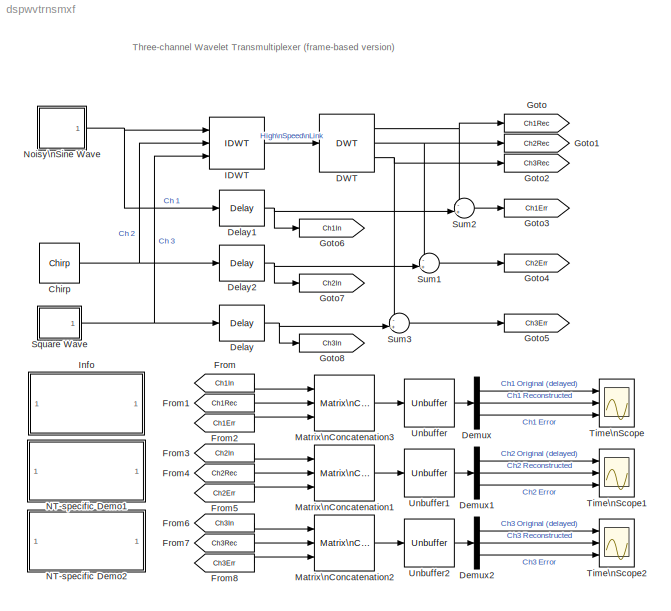
MODEL dspwvtrnsmxf
KIND model
CONFIG AbsTol = auto
CONFIG FixedStep = auto
CONFIG MaxStep = auto
CONFIG MinStep = auto
CONFIG PreLoadFcn = load dspwlets;
CONFIG RelTol = 1e-3
CONFIG Solver = FixedStepDiscrete
CONFIG SolverMode = Auto
CONFIG StartTime = 0.0
CONFIG StopTime = 1000
BLOCK [Reference] Chirp  REF=dspsrcs4/Chirp
  Ports = [0, 1]
  SourceBlock = dspsrcs4/Chirp
  SourceType = Chirp
  Ts = ts
  Tsweep = 1000
  datatype = Double
  f0 = 1/5000
  f1 = 1/50
  mode = Bidirectional
  phase = 0
  spf = fs
  sweep = Swept cosine
  t1 = 1000
BLOCK [Reference] DWT  REF=dspxfrm3/DWT
  HPF = hid
  LPF = lod
  NumLevels = 2
  OrdRec_ordDec = [1 / 1]
  Order = 2
  Output = Multiple ports
  Ports = [1, 3]
  SourceBlock = dspxfrm3/DWT
  SourceType = DWT
  Wname = User-defined
  tree = Asymmetric
BLOCK [Reference] Delay  REF=dspsigops/Delay
  Ports = [1, 1]
  SourceBlock = dspsigops/Delay
  SourceType = Delay
  delay = 6
  dif_ic_for_ch = off
  dif_ic_for_dly = off
  dly_unit = Samples
  ic = 0
  ic_detail = on
  reset_popup = None
BLOCK [Reference] Delay1  REF=dspsigops/Delay
  Ports = [1, 1]
  SourceBlock = dspsigops/Delay
  SourceType = Delay
  delay = 4
  dif_ic_for_ch = off
  dif_ic_for_dly = off
  dly_unit = Samples
  ic = 0
  ic_detail = on
  reset_popup = None
BLOCK [Reference] Delay2  REF=dspsigops/Delay
  Ports = [1, 1]
  SourceBlock = dspsigops/Delay
  SourceType = Delay
  delay = 6
  dif_ic_for_ch = off
  dif_ic_for_dly = off
  dly_unit = Samples
  ic = 0
  ic_detail = on
  reset_popup = None
BLOCK [Demux] Demux
  Outputs = 3
  Ports = [1, 3]
BLOCK [Demux] Demux1
  Outputs = 3
  Ports = [1, 3]
BLOCK [Demux] Demux2
  Outputs = 3
  Ports = [1, 3]
BLOCK [From] From
  GotoTag = Ch1In
BLOCK [From] From1
  GotoTag = Ch1Rec
BLOCK [From] From2
  GotoTag = Ch1Err
BLOCK [From] From3
  GotoTag = Ch2In
BLOCK [From] From4
  GotoTag = Ch2Rec
BLOCK [From] From5
  GotoTag = Ch2Err
BLOCK [From] From6
  GotoTag = Ch3In
BLOCK [From] From7
  GotoTag = Ch3Rec
BLOCK [From] From8
  GotoTag = Ch3Err
BLOCK [Goto] Goto
  GotoTag = Ch1Rec
  TagVisibility = local
BLOCK [Goto] Goto1
  GotoTag = Ch2Rec
  TagVisibility = local
BLOCK [Goto] Goto2
  GotoTag = Ch3Rec
  TagVisibility = local
BLOCK [Goto] Goto3
  GotoTag = Ch1Err
  TagVisibility = local
BLOCK [Goto] Goto4
  GotoTag = Ch2Err
  TagVisibility = local
BLOCK [Goto] Goto5
  GotoTag = Ch3Err
  TagVisibility = local
BLOCK [Goto] Goto6
  GotoTag = Ch1In
  TagVisibility = local
BLOCK [Goto] Goto7
  GotoTag = Ch2In
  TagVisibility = local
BLOCK [Goto] Goto8
  GotoTag = Ch3In
  TagVisibility = local
BLOCK [Reference] IDWT  REF=dspxfrm3/IDWT
  HPF = [0 hir]
  Input = Multiple ports
  LPF = [0 lor]
  NumLevels = 2
  OrdRec_ordDec = [1 / 1]
  Order = 2
  Ports = [3, 1]
  SourceBlock = dspxfrm3/IDWT
  SourceType = IDWT
  Wname = User-defined
  tree = Asymmetric
BLOCK [SubSystem] Info
  MaskDisplay = disp('Info')
  MaskIconFrame = on
  MaskIconOpaque = on
  MaskIconRotate = none
  MaskIconUnits = autoscale
  MaskType = Frame-Based Simulation Info
  Ports = []
  TreatAsAtomicUnit = off
BLOCK [Reference] Matrix\nConcatenation1  REF=simulink/Math\nOperations/Matrix\nConcatenation
  Ports = [3, 1]
  SourceBlock = simulink/Math\nOperations/Matrix\nConcatenation
  SourceType = Matrix Concatenation
  catMethod = Horizontal
  numInports = 3
BLOCK [Reference] Matrix\nConcatenation2  REF=simulink/Math\nOperations/Matrix\nConcatenation
  Ports = [3, 1]
  SourceBlock = simulink/Math\nOperations/Matrix\nConcatenation
  SourceType = Matrix Concatenation
  catMethod = Horizontal
  numInports = 3
BLOCK [Reference] Matrix\nConcatenation3  REF=simulink/Math\nOperations/Matrix\nConcatenation
  Ports = [3, 1]
  SourceBlock = simulink/Math\nOperations/Matrix\nConcatenation
  SourceType = Matrix Concatenation
  catMethod = Horizontal
  numInports = 3
BLOCK [SubSystem] NT-specific Demo1
  MaskDisplay = disp('Sample-Based\\nDemo')
  MaskIconFrame = on
  MaskIconOpaque = on
  MaskIconRotate = none
  MaskIconUnits = autoscale
  MaskType = Sample-Based Demo
  OpenFcn = dspwvtrnsmx
  Ports = []
  TreatAsAtomicUnit = off
BLOCK [SubSystem] NT-specific Demo2
  MaskDisplay = disp('Fixed-Point\\nDemo')
  MaskIconFrame = on
  MaskIconOpaque = on
  MaskIconRotate = none
  MaskIconUnits = autoscale
  MaskType = Fixed-Point Demo
  OpenFcn = dspwvtrnsmxfp
  Ports = []
  TreatAsAtomicUnit = off
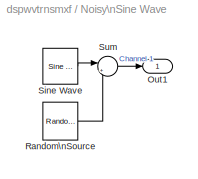
BLOCK [SubSystem] Noisy\nSine Wave
  Ports = [0, 1]
  ShowPortLabels = off
  TreatAsAtomicUnit = off
BLOCK [Outport] Noisy\nSine Wave/Out1
BLOCK [Reference] Noisy\nSine Wave/Random\nSource  REF=dspsrcs4/Random\nSource
  Diagnostics = AllowInheritedTsInSrc
  Inherit = off
  Max = 1
  Mean = 0
  Min = 0
  OutComplex = Real
  Ports = [0, 1]
  RepMode = Specify seed
  SampFrame = fs*2
  SampMode = Discrete
  SampTime = ts/2
  Seed = 1
  SourceBlock = dspsrcs4/Random\nSource
  SourceType = Random Source
  SrcType = Gaussian
  Var = 0.2
BLOCK [Reference] Noisy\nSine Wave/Sine Wave  REF=dspsrcs4/Sine Wave
  Amplitude = 1
  CompMethod = Trigonometric fcn
  Frequency = 1/68
  OutComplex = Real
  Phase = 0
  Ports = [0, 1]
  ResetState = Restart at time zero
  SampleMode = Discrete
  SampleTime = ts/2
  SamplesPerFrame = fs*2
  SourceBlock = dspsrcs4/Sine Wave
  SourceType = Sine Wave
  TableSize = Speed
  dType = Double
BLOCK [Sum] Noisy\nSine Wave/Sum
  IconShape = round
  Inputs = |++
  Ports = [2, 1]
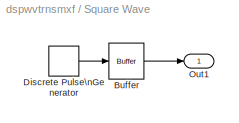
BLOCK [SubSystem] Square Wave
  Ports = [0, 1]
  ShowPortLabels = off
  TreatAsAtomicUnit = off
BLOCK [Reference] Square Wave/Buffer  REF=dspbuff3/Buffer
  N = fs
  Ports = [1, 1]
  SourceBlock = dspbuff3/Buffer
  SourceType = Buffer
  V = 0
  ic = 0
BLOCK [DiscretePulseGenerator] Square Wave/Discrete Pulse\nGenerator
  Period = 125
  Ports = [0, 1]
  PulseWidth = 50
  SampleTime = ts
BLOCK [Outport] Square Wave/Out1
BLOCK [Sum] Sum1
  IconShape = round
  Inputs = -+|
  Ports = [2, 1]
BLOCK [Sum] Sum2
  IconShape = round
  Inputs = -+|
  Ports = [2, 1]
BLOCK [Sum] Sum3
  IconShape = round
  Inputs = -+|
  Ports = [2, 1]
BLOCK [Scope] Time\nScope
  DataFormat = Structure
  NumInputPorts = 3
  Ports = [3]
  TimeRange = 1000
  YMax = 2~2~5e-011
  YMin = -2~-2~-5e-011
BLOCK [Scope] Time\nScope1
  DataFormat = Structure
  NumInputPorts = 3
  Ports = [3]
  SaveName = ScopeData1
  TimeRange = 1000
  YMax = 1~1~5e-011
  YMin = -1~-1~-5e-011
BLOCK [Scope] Time\nScope2
  DataFormat = Structure
  NumInputPorts = 3
  Ports = [3]
  SaveName = ScopeData2
  TimeRange = 1000
  YMax = 1.2~1.2~5e-011
  YMin = 0~0~-5e-011
BLOCK [Reference] Unbuffer  REF=dspbuff3/Unbuffer
  Ports = [1, 1]
  SourceBlock = dspbuff3/Unbuffer
  SourceType = Unbuffer
  ic = 0
BLOCK [Reference] Unbuffer1  REF=dspbuff3/Unbuffer
  Ports = [1, 1]
  SourceBlock = dspbuff3/Unbuffer
  SourceType = Unbuffer
  ic = 0
BLOCK [Reference] Unbuffer2  REF=dspbuff3/Unbuffer
  Ports = [1, 1]
  SourceBlock = dspbuff3/Unbuffer
  SourceType = Unbuffer
  ic = 0
ANNOTATION (root): Three-channel Wavelet Transmultiplexer (frame-based version)
ANNOTATION Info: Demonstration of a Wavelet Transmultiplexer (WTM)\n\nThe wavelet transmultiplexer (WTM) provides\nan interesting example of the perfect\nreconstruction property of the DWT.\n\nThis WTM combines three source signals for transmission\nover a single link, then separates the three signals at the\nreceiving end of the channel. The waveforms plotted in\neach of the scope windows demonstrate the ability ...<+2795ch>
NET Chirp:1 -> Delay2:1, IDWT:2
NET DWT:1 -> Goto:1, Sum2:1
NET DWT:2 -> Goto1:1, Sum1:1
NET DWT:3 -> Goto2:1, Sum3:1
NET Delay1:1 -> Goto6:1, Sum2:2
NET Delay2:1 -> Goto7:1, Sum1:2
NET Delay:1 -> Goto8:1, Sum3:2
LINE Demux1:1 -> Time\nScope1:1
LINE Demux1:2 -> Time\nScope1:2
LINE Demux1:3 -> Time\nScope1:3
LINE Demux2:1 -> Time\nScope2:1
LINE Demux2:2 -> Time\nScope2:2
LINE Demux2:3 -> Time\nScope2:3
LINE Demux:1 -> Time\nScope:1
LINE Demux:2 -> Time\nScope:2
LINE Demux:3 -> Time\nScope:3
LINE From1:1 -> Matrix\nConcatenation3:2
LINE From2:1 -> Matrix\nConcatenation3:3
LINE From3:1 -> Matrix\nConcatenation1:1
LINE From4:1 -> Matrix\nConcatenation1:2
LINE From5:1 -> Matrix\nConcatenation1:3
LINE From6:1 -> Matrix\nConcatenation2:1
LINE From7:1 -> Matrix\nConcatenation2:2
LINE From8:1 -> Matrix\nConcatenation2:3
LINE From:1 -> Matrix\nConcatenation3:1
LINE IDWT:1 -> DWT:1
LINE Matrix\nConcatenation1:1 -> Unbuffer1:1
LINE Matrix\nConcatenation2:1 -> Unbuffer2:1
LINE Matrix\nConcatenation3:1 -> Unbuffer:1
LINE Noisy\nSine Wave/Random\nSource:1 -> Noisy\nSine Wave/Sum:2
LINE Noisy\nSine Wave/Sine Wave:1 -> Noisy\nSine Wave/Sum:1
LINE Noisy\nSine Wave/Sum:1 -> Noisy\nSine Wave/Out1:1
NET Noisy\nSine Wave:1 -> Delay1:1, IDWT:1
LINE Square Wave/Buffer:1 -> Square Wave/Out1:1
LINE Square Wave/Discrete Pulse\nGenerator:1 -> Square Wave/Buffer:1
NET Square Wave:1 -> Delay:1, IDWT:3
LINE Sum1:1 -> Goto4:1
LINE Sum2:1 -> Goto3:1
LINE Sum3:1 -> Goto5:1
LINE Unbuffer1:1 -> Demux1:1
LINE Unbuffer2:1 -> Demux2:1
LINE Unbuffer:1 -> Demux:1
note: NET lines group one-source signal fan-out (src -> all destinations, sorted); 1:1 wires keep LINE
